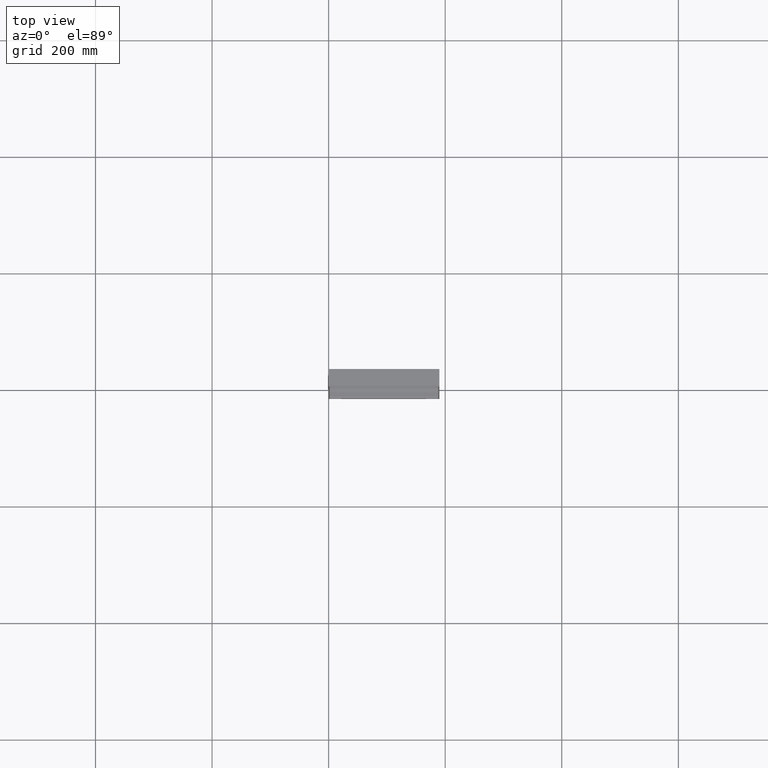
[diagram: clean part render]
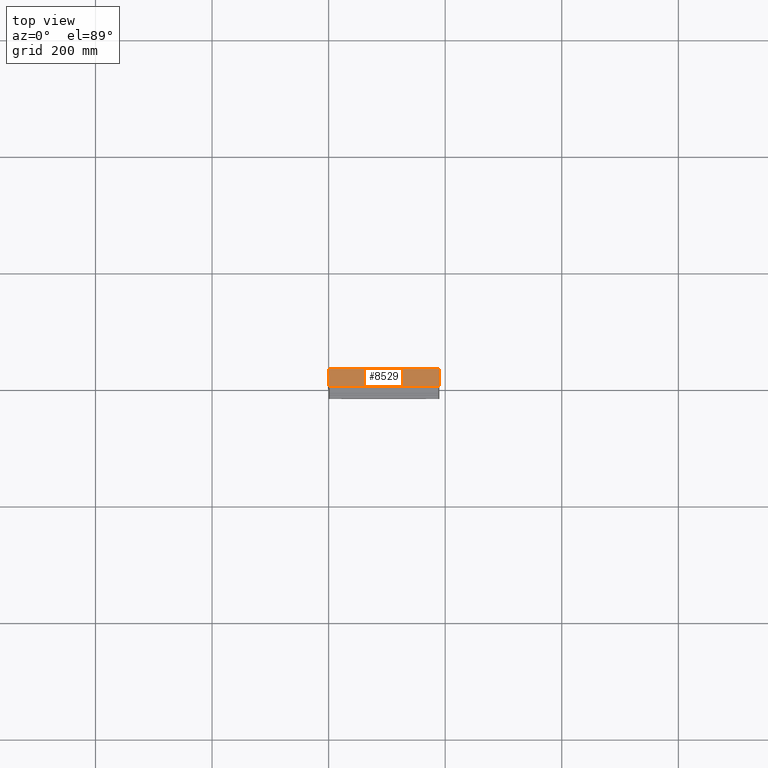
[diagram: same view with one face highlighted and labeled with its STEP entity id]
A machine part, top view. The second image highlights one B-rep face of the part: STEP entity #8529.
In plain terms, the highlighted planar face has unit normal (0, 0, -1).
Its self-contained STEP definition (entity closure, byte-faithful):
#1014 = CARTESIAN_POINT ( 'NONE',  ( -1.836970198721028000E-015, 5.000000000000000900, 0.0000000000000000000 ) ) ;
#3379 = EDGE_CURVE ( 'NONE', #23241, #30018, #31967, .T. ) ;
#5999 = EDGE_CURVE ( 'NONE', #30018, #16645, #14921, .T. ) ;
#6501 = VERTEX_POINT ( 'NONE', #38176 ) ;
#8529 = ADVANCED_FACE ( 'NONE', ( #10349 ), #41517, .F. ) ;
#8603 = ORIENTED_EDGE ( 'NONE', *, *, #3379, .F. ) ;
#8638 = CARTESIAN_POINT ( 'NONE',  ( 190.0000000000000300, 14.99999999999957900, 0.0000000000000000000 ) ) ;
#8924 = CARTESIAN_POINT ( 'NONE',  ( 189.9999999999999400, -15.00000000000000000, -1.110223024625156500E-013 ) ) ;
#9475 = ORIENTED_EDGE ( 'NONE', *, *, #32350, .F. ) ;
#10066 = EDGE_CURVE ( 'NONE', #6501, #16645, #13603, .T. ) ;
#10349 = FACE_OUTER_BOUND ( 'NONE', #16056, .T. ) ;
#13603 = LINE ( 'NONE', #23434, #38068 ) ;
#14198 = CARTESIAN_POINT ( 'NONE',  ( 8.326672684688658900E-014, 15.00000000000000000, -7.466180501988860100E-014 ) ) ;
#14921 = B_SPLINE_CURVE_WITH_KNOTS ( 'NONE', 3,
 ( #40247, #20883, #1014, #14198 ),
 .UNSPECIFIED., .F., .F.,
 ( 4, 4 ),
 ( 0.0000000000000000000, 1.000000000000000000 ),
 .UNSPECIFIED. ) ;
#16056 = EDGE_LOOP ( 'NONE', ( #31952, #40118, #8603, #9475 ) ) ;
#16220 = LINE ( 'NONE', #28089, #35093 ) ;
#16645 = VERTEX_POINT ( 'NONE', #34932 ) ;
#18108 = CARTESIAN_POINT ( 'NONE',  ( 189.9999999999999400, -15.00000000000000000, -1.110223024625156500E-013 ) ) ;
#19370 = AXIS2_PLACEMENT_3D ( 'NONE', #8638, #34536, #31553 ) ;
#20883 = CARTESIAN_POINT ( 'NONE',  ( 1.224646799147354400E-015, -5.000000000000000900, 0.0000000000000000000 ) ) ;
#21301 = DIRECTION ( 'NONE',  ( -1.000000000000000000, 0.0000000000000000000, -3.929568685257303000E-016 ) ) ;
#23241 = VERTEX_POINT ( 'NONE', #18108 ) ;
#23434 = CARTESIAN_POINT ( 'NONE',  ( 189.9999999999999700, 15.00000000000000000, -2.220446049250313100E-013 ) ) ;
#28089 = CARTESIAN_POINT ( 'NONE',  ( 190.0000000000000300, 14.99999999999957900, 0.0000000000000000000 ) ) ;
#28393 = VECTOR ( 'NONE', #21301, 1000.000000000000000 ) ;
#30018 = VERTEX_POINT ( 'NONE', #30058 ) ;
#30058 = CARTESIAN_POINT ( 'NONE',  ( 2.143131898507868200E-015, -15.00000000000000000, 0.0000000000000000000 ) ) ;
#31537 = DIRECTION ( 'NONE',  ( -3.061616997868383100E-016, -1.000000000000000000, -3.061616997868384600E-016 ) ) ;
#31553 = DIRECTION ( 'NONE',  ( -1.000000000000000000, 0.0000000000000000000, -3.929568685257303000E-016 ) ) ;
#31952 = ORIENTED_EDGE ( 'NONE', *, *, #10066, .T. ) ;
#31967 = LINE ( 'NONE', #8924, #28393 ) ;
#32350 = EDGE_CURVE ( 'NONE', #6501, #23241, #16220, .T. ) ;
#34536 = DIRECTION ( 'NONE',  ( 3.929568685257303000E-016, 3.061616997868383600E-016, -1.000000000000000000 ) ) ;
#34932 = CARTESIAN_POINT ( 'NONE',  ( 8.326672684688658900E-014, 15.00000000000000000, -7.466180501988860100E-014 ) ) ;
#35093 = VECTOR ( 'NONE', #31537, 1000.000000000000000 ) ;
#36705 = DIRECTION ( 'NONE',  ( -1.000000000000000000, 0.0000000000000000000, -3.929568685257303000E-016 ) ) ;
#38068 = VECTOR ( 'NONE', #36705, 1000.000000000000000 ) ;
#38176 = CARTESIAN_POINT ( 'NONE',  ( 189.9999999999999700, 15.00000000000000000, -2.220446049250313100E-013 ) ) ;
#40118 = ORIENTED_EDGE ( 'NONE', *, *, #5999, .F. ) ;
#40247 = CARTESIAN_POINT ( 'NONE',  ( 2.143131898507868200E-015, -15.00000000000000000, 0.0000000000000000000 ) ) ;
#41517 = PLANE ( 'NONE',  #19370 ) ;